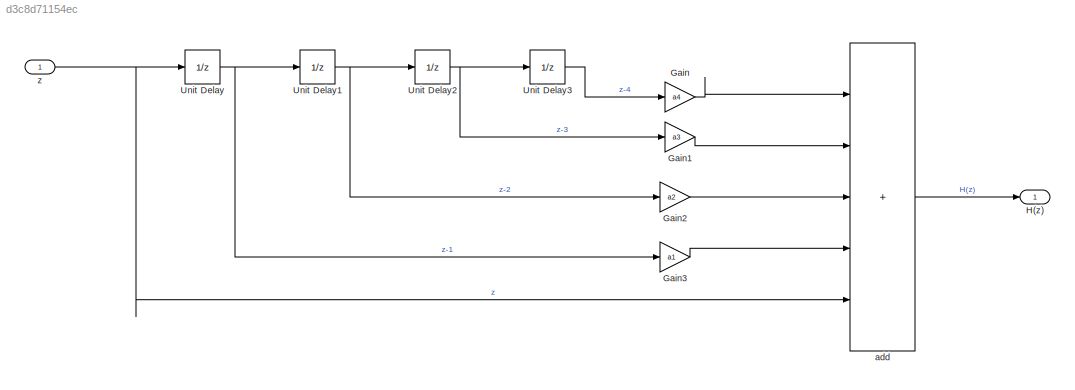
MODEL slx_d3c8d71154ec
KIND model
CONFIG AbsTol = auto
CONFIG EnableMultiTasking = off
CONFIG FixedStep = auto
CONFIG MaxStep = auto
CONFIG MinStep = auto
CONFIG RelTol = 1e-3
CONFIG SampleTimeConstraint = Unconstrained
CONFIG SolverName = VariableStepAuto
CONFIG StartTime = 0.0
CONFIG StopTime = 10.0
WORKSPACE source: mxarray member
WORKSPACE a1 = 2
WORKSPACE a2 = -3
WORKSPACE a3 = -4
WORKSPACE a4 = 5
BLOCK [Gain] Gain
  Gain = a4
BLOCK [Gain] Gain1
  Gain = a3
BLOCK [Gain] Gain2
  Gain = a2
BLOCK [Gain] Gain3
  Gain = a1
BLOCK [Outport] H(z)
  OutDataTypeStr = double
  PortDimensions = 1
  SampleTime = 0
  SamplingMode = Sample based
  SignalType = real
BLOCK [UnitDelay] Unit Delay
  HasFrameUpgradeWarning = on
  SampleTime = -1
BLOCK [UnitDelay] Unit Delay1
  HasFrameUpgradeWarning = on
  SampleTime = -1
BLOCK [UnitDelay] Unit Delay2
  HasFrameUpgradeWarning = on
  SampleTime = -1
BLOCK [UnitDelay] Unit Delay3
  HasFrameUpgradeWarning = on
  SampleTime = -1
BLOCK [Sum] add
  IconShape = rectangular
  Inputs = +++++
  Ports = [5, 1]
BLOCK [Inport] z
  OutDataTypeStr = double
  PortDimensions = 1
  SampleTime = 0
  SamplingMode = Sample based
  SignalType = real
LINE Gain1:1 -> add:2
LINE Gain2:1 -> add:3
LINE Gain3:1 -> add:4
LINE Gain:1 -> add:1
NET Unit Delay1:1 -> Gain2:1, Unit Delay2:1
NET Unit Delay2:1 -> Gain1:1, Unit Delay3:1
LINE Unit Delay3:1 -> Gain:1
NET Unit Delay:1 -> Gain3:1, Unit Delay1:1
LINE add:1 -> H(z):1
NET z:1 -> Unit Delay:1, add:5
note: NET lines group one-source signal fan-out (src -> all destinations, sorted); 1:1 wires keep LINE
